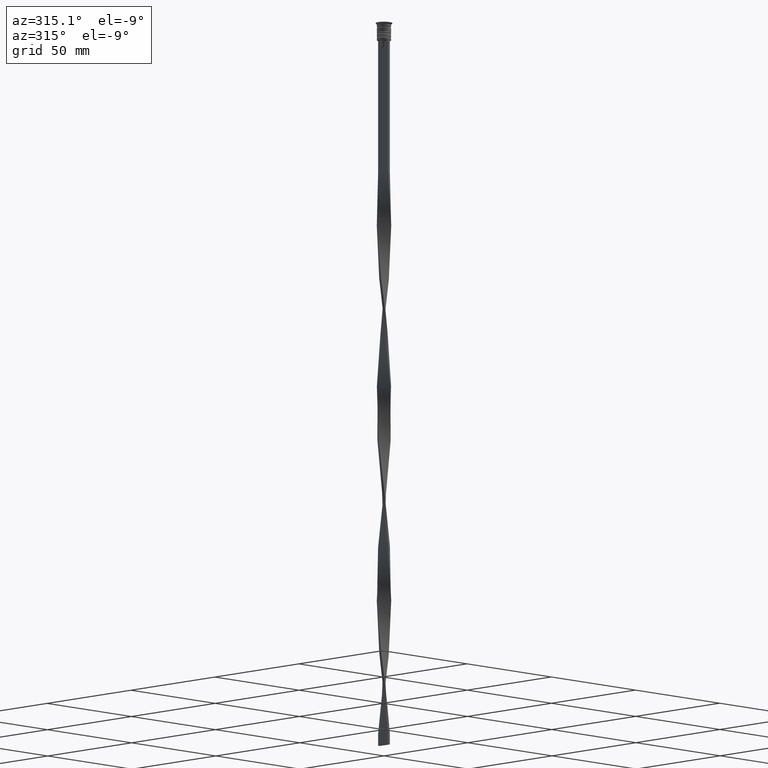
[diagram: clean part render]
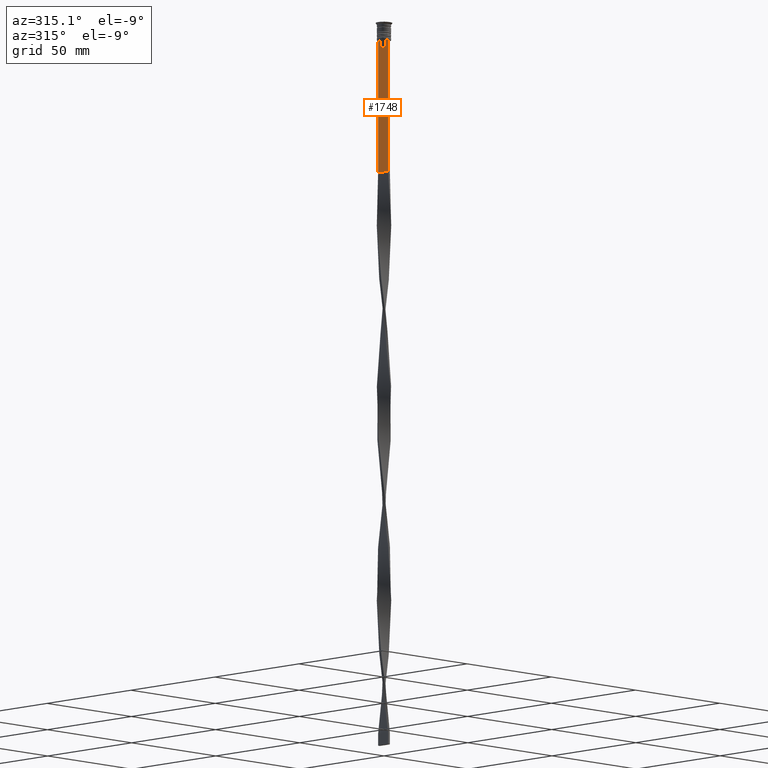
[diagram: same view with one face highlighted and labeled with its STEP entity id]
A machine part, auxiliary view. The second image highlights one B-rep face of the part: STEP entity #1748.
In plain terms, the highlighted planar face has unit normal (-1, 0, 0).
Its self-contained STEP definition (entity closure, byte-faithful):
#52 = CARTESIAN_POINT ( 'NONE',  ( -0.5000000000000001110, -1.307669683062199217, -8.000000000000000000 ) ) ;
#58 = ORIENTED_EDGE ( 'NONE', *, *, #1389, .F. ) ;
#152 = CARTESIAN_POINT ( 'NONE',  ( -0.5000000000000001110, 1.307669683062199217, -8.000000000000000000 ) ) ;
#156 = DIRECTION ( 'NONE',  ( 0.000000000000000000, 0.000000000000000000, -1.000000000000000000 ) ) ;
#212 = LINE ( 'NONE', #1430, #1684 ) ;
#247 = ORIENTED_EDGE ( 'NONE', *, *, #621, .F. ) ;
#342 = ORIENTED_EDGE ( 'NONE', *, *, #3688, .F. ) ;
#425 = CARTESIAN_POINT ( 'NONE',  ( -0.5000000000000001110, -3.000000000000000000, -7.500000000000000000 ) ) ;
#472 = DIRECTION ( 'NONE',  ( 0.000000000000000000, -1.000000000000000000, 0.000000000000000000 ) ) ;
#493 = VERTEX_POINT ( 'NONE', #1431 ) ;
#561 = VECTOR ( 'NONE', #3144, 1000.000000000000000 ) ;
#611 = CARTESIAN_POINT ( 'NONE',  ( -0.5000000000000001110, -1.307669683062199217, -10.49999999999999822 ) ) ;
#619 = VECTOR ( 'NONE', #3541, 1000.000000000000000 ) ;
#621 = EDGE_CURVE ( 'NONE', #3093, #1565, #793, .T. ) ;
#668 = EDGE_LOOP ( 'NONE', ( #247, #3468, #342, #2355, #1806, #2119, #1015, #2086, #58, #3077, #2320, #970 ) ) ;
#715 = EDGE_CURVE ( 'NONE', #2925, #777, #735, .T. ) ;
#735 = LINE ( 'NONE', #425, #3643 ) ;
#736 = VECTOR ( 'NONE', #2810, 1000.000000000000000 ) ;
#755 = EDGE_CURVE ( 'NONE', #777, #3427, #1704, .T. ) ;
#777 = VERTEX_POINT ( 'NONE', #2372 ) ;
#790 = LINE ( 'NONE', #2917, #619 ) ;
#793 = B_SPLINE_CURVE_WITH_KNOTS ( 'NONE', 3,
 ( #1353, #2543, #3763, #1979 ),
 .UNSPECIFIED., .F., .F.,
 ( 4, 4 ),
 ( 0.003278537493109840491, 0.004003794023484932504 ),
 .UNSPECIFIED. ) ;
#889 = CARTESIAN_POINT ( 'NONE',  ( -0.5000000000000001110, -1.484307477388859153, -7.835011508197190722 ) ) ;
#960 = CARTESIAN_POINT ( 'NONE',  ( -0.5000000000000001110, -3.000000000000000000, -7.500000000000000000 ) ) ;
#970 = ORIENTED_EDGE ( 'NONE', *, *, #3827, .F. ) ;
#999 = VECTOR ( 'NONE', #1723, 1000.000000000000000 ) ;
#1015 = ORIENTED_EDGE ( 'NONE', *, *, #755, .F. ) ;
#1070 = EDGE_CURVE ( 'NONE', #493, #3883, #212, .T. ) ;
#1159 = DIRECTION ( 'NONE',  ( 0.000000000000000000, 0.000000000000000000, 1.000000000000000000 ) ) ;
#1217 = LINE ( 'NONE', #3023, #3200 ) ;
#1264 = CARTESIAN_POINT ( 'NONE',  ( -0.5000000000000001110, 3.000000000000000000, -7.500000000000000000 ) ) ;
#1276 = B_SPLINE_CURVE_WITH_KNOTS ( 'NONE', 3,
 ( #1798, #889, #3930, #3887 ),
 .UNSPECIFIED., .F., .F.,
 ( 4, 4 ),
 ( 0.007225659348748070081, 0.007950554640278040958 ),
 .UNSPECIFIED. ) ;
#1315 = DIRECTION ( 'NONE',  ( 0.000000000000000000, -1.000000000000000000, 0.000000000000000000 ) ) ;
#1353 = CARTESIAN_POINT ( 'NONE',  ( -0.5000000000000001110, 1.833030277982335532, -7.500000000000000000 ) ) ;
#1389 = EDGE_CURVE ( 'NONE', #1849, #2925, #1276, .T. ) ;
#1413 = CARTESIAN_POINT ( 'NONE',  ( -0.5000000000000001110, -3.000000000000000000, -1.417237469701779329 ) ) ;
#1430 = CARTESIAN_POINT ( 'NONE',  ( -0.5000000000000001110, -3.000000000000000000, -63.50000000000000000 ) ) ;
#1431 = CARTESIAN_POINT ( 'NONE',  ( -0.5000000000000001110, -3.000000000000000000, -63.50000000000000000 ) ) ;
#1556 = EDGE_CURVE ( 'NONE', #2334, #1849, #790, .T. ) ;
#1565 = VERTEX_POINT ( 'NONE', #152 ) ;
#1631 = CARTESIAN_POINT ( 'NONE',  ( -0.5000000000000001110, -3.000000000000000000, -7.500000000000000000 ) ) ;
#1632 = DIRECTION ( 'NONE',  ( 0.000000000000000000, -1.000000000000000000, 0.000000000000000000 ) ) ;
#1684 = VECTOR ( 'NONE', #3854, 1000.000000000000000 ) ;
#1704 = LINE ( 'NONE', #1631, #2288 ) ;
#1723 = DIRECTION ( 'NONE',  ( 0.000000000000000000, -1.000000000000000000, 0.000000000000000000 ) ) ;
#1748 = ADVANCED_FACE ( 'NONE', ( #2904 ), #2594, .T. ) ;
#1798 = CARTESIAN_POINT ( 'NONE',  ( -0.5000000000000001110, -1.307669683062199217, -8.000000000000000000 ) ) ;
#1806 = ORIENTED_EDGE ( 'NONE', *, *, #1070, .F. ) ;
#1849 = VERTEX_POINT ( 'NONE', #52 ) ;
#1891 = EDGE_CURVE ( 'NONE', #3291, #3093, #2528, .T. ) ;
#1929 = CARTESIAN_POINT ( 'NONE',  ( -0.5000000000000001110, 1.307669683062199217, -10.49999999999999822 ) ) ;
#1934 = CARTESIAN_POINT ( 'NONE',  ( -0.5000000000000001110, -3.000000000000000000, -1.417237469701779329 ) ) ;
#1958 = CARTESIAN_POINT ( 'NONE',  ( -0.5000000000000001110, -3.000000000000000000, -7.500000000000000000 ) ) ;
#1979 = CARTESIAN_POINT ( 'NONE',  ( -0.5000000000000001110, 1.307669683062199217, -8.000000000000000000 ) ) ;
#1999 = CARTESIAN_POINT ( 'NONE',  ( -0.5000000000000001110, 1.833030277982335532, -7.500000000000000000 ) ) ;
#2083 = CARTESIAN_POINT ( 'NONE',  ( -0.5000000000000001110, 2.856571371417139904, -7.500000000000000000 ) ) ;
#2086 = ORIENTED_EDGE ( 'NONE', *, *, #715, .F. ) ;
#2119 = ORIENTED_EDGE ( 'NONE', *, *, #3742, .F. ) ;
#2288 = VECTOR ( 'NONE', #1315, 1000.000000000000000 ) ;
#2320 = ORIENTED_EDGE ( 'NONE', *, *, #2843, .F. ) ;
#2334 = VERTEX_POINT ( 'NONE', #611 ) ;
#2355 = ORIENTED_EDGE ( 'NONE', *, *, #3112, .T. ) ;
#2372 = CARTESIAN_POINT ( 'NONE',  ( -0.5000000000000001110, -2.856571371417139904, -7.500000000000000000 ) ) ;
#2515 = VERTEX_POINT ( 'NONE', #1264 ) ;
#2528 = LINE ( 'NONE', #960, #736 ) ;
#2543 = CARTESIAN_POINT ( 'NONE',  ( -0.5000000000000001110, 1.659046061654642523, -7.667851756010361619 ) ) ;
#2571 = CARTESIAN_POINT ( 'NONE',  ( -0.5000000000000001110, 1.399999999999997691, -10.49999999999999822 ) ) ;
#2594 = PLANE ( 'NONE',  #3574 ) ;
#2606 = LINE ( 'NONE', #1958, #3073 ) ;
#2792 = DIRECTION ( 'NONE',  ( 0.000000000000000000, 0.000000000000000000, -1.000000000000000000 ) ) ;
#2810 = DIRECTION ( 'NONE',  ( 0.000000000000000000, -1.000000000000000000, 0.000000000000000000 ) ) ;
#2813 = CARTESIAN_POINT ( 'NONE',  ( -0.5000000000000001110, 3.000000000000000000, -1.417237469701779329 ) ) ;
#2843 = EDGE_CURVE ( 'NONE', #3931, #2334, #3198, .T. ) ;
#2904 = FACE_OUTER_BOUND ( 'NONE', #668, .T. ) ;
#2917 = CARTESIAN_POINT ( 'NONE',  ( -0.5000000000000001110, -1.307669683062199217, 0.000000000000000000 ) ) ;
#2925 = VERTEX_POINT ( 'NONE', #3471 ) ;
#3023 = CARTESIAN_POINT ( 'NONE',  ( -0.5000000000000001110, 1.307669683062199217, 0.000000000000000000 ) ) ;
#3073 = VECTOR ( 'NONE', #472, 1000.000000000000000 ) ;
#3077 = ORIENTED_EDGE ( 'NONE', *, *, #1556, .F. ) ;
#3093 = VERTEX_POINT ( 'NONE', #1999 ) ;
#3112 = EDGE_CURVE ( 'NONE', #2515, #3883, #3199, .T. ) ;
#3144 = DIRECTION ( 'NONE',  ( 0.000000000000000000, 0.000000000000000000, -1.000000000000000000 ) ) ;
#3198 = LINE ( 'NONE', #2571, #999 ) ;
#3199 = LINE ( 'NONE', #2813, #561 ) ;
#3200 = VECTOR ( 'NONE', #2792, 1000.000000000000000 ) ;
#3291 = VERTEX_POINT ( 'NONE', #2083 ) ;
#3363 = CARTESIAN_POINT ( 'NONE',  ( -0.5000000000000001110, -3.000000000000000000, -7.500000000000000000 ) ) ;
#3387 = CARTESIAN_POINT ( 'NONE',  ( -0.5000000000000001110, 3.000000000000000000, -63.50000000000000000 ) ) ;
#3427 = VERTEX_POINT ( 'NONE', #3363 ) ;
#3433 = LINE ( 'NONE', #1934, #3914 ) ;
#3468 = ORIENTED_EDGE ( 'NONE', *, *, #1891, .F. ) ;
#3471 = CARTESIAN_POINT ( 'NONE',  ( -0.5000000000000001110, -1.833030277982335532, -7.500000000000000000 ) ) ;
#3541 = DIRECTION ( 'NONE',  ( -0.000000000000000000, -0.000000000000000000, 1.000000000000000000 ) ) ;
#3574 = AXIS2_PLACEMENT_3D ( 'NONE', #1413, #3810, #1159 ) ;
#3643 = VECTOR ( 'NONE', #1632, 1000.000000000000000 ) ;
#3688 = EDGE_CURVE ( 'NONE', #2515, #3291, #2606, .T. ) ;
#3742 = EDGE_CURVE ( 'NONE', #3427, #493, #3433, .T. ) ;
#3763 = CARTESIAN_POINT ( 'NONE',  ( -0.5000000000000001110, 1.484355510416485391, -7.834966642958598015 ) ) ;
#3810 = DIRECTION ( 'NONE',  ( -1.000000000000000000, 0.000000000000000000, 0.000000000000000000 ) ) ;
#3827 = EDGE_CURVE ( 'NONE', #1565, #3931, #1217, .T. ) ;
#3854 = DIRECTION ( 'NONE',  ( 0.000000000000000000, 1.000000000000000000, 0.000000000000000000 ) ) ;
#3883 = VERTEX_POINT ( 'NONE', #3387 ) ;
#3887 = CARTESIAN_POINT ( 'NONE',  ( -0.5000000000000001110, -1.833030277982335532, -7.500000000000000000 ) ) ;
#3914 = VECTOR ( 'NONE', #156, 1000.000000000000000 ) ;
#3930 = CARTESIAN_POINT ( 'NONE',  ( -0.5000000000000001110, -1.659011726860414093, -7.667884880598472286 ) ) ;
#3931 = VERTEX_POINT ( 'NONE', #1929 ) ;